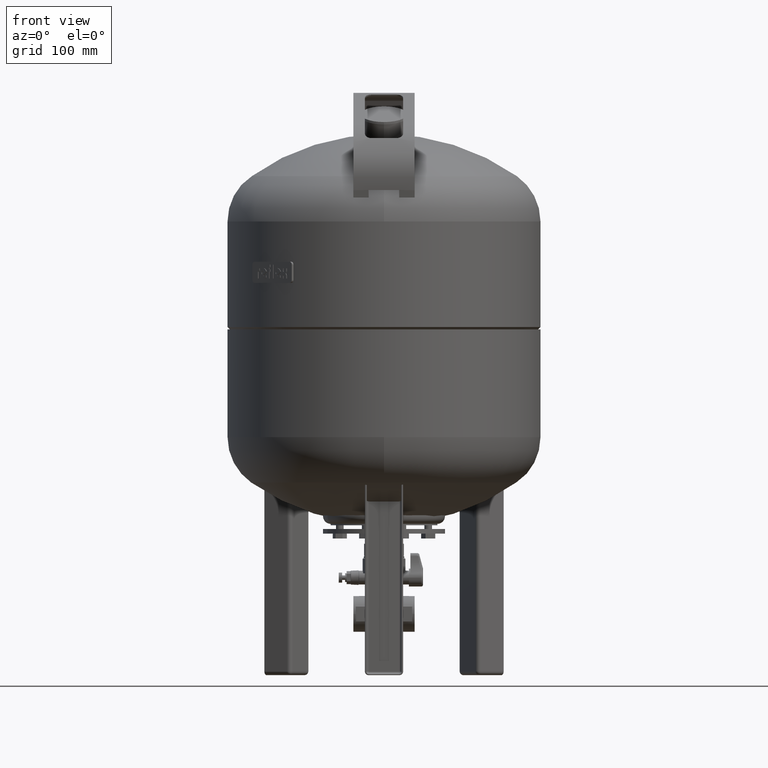
[diagram: clean part render]
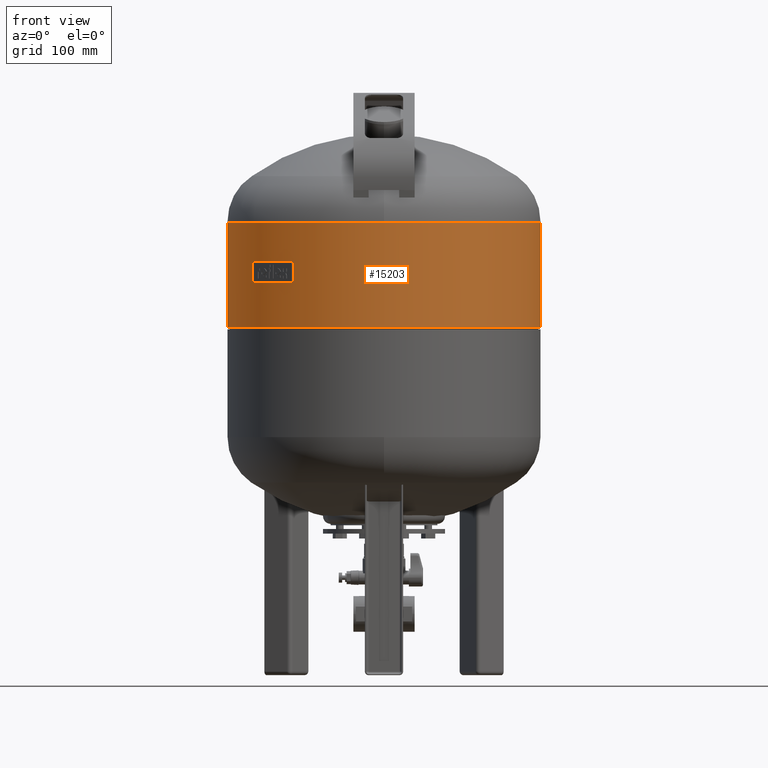
[diagram: same view with one face highlighted and labeled with its STEP entity id]
A machine part, front view. The second image highlights one B-rep face of the part: STEP entity #15203.
In plain terms, the highlighted cylindrical surface (partial cylindrical patch) has radius 204.5 mm, axis along (-0, 0, -1).
Its self-contained STEP definition (entity closure, byte-faithful):
#15137=CARTESIAN_POINT('',(-204.500000000000030,-2.522772E-014,455.0));
#15138=VERTEX_POINT('',#15137);
#15154=CARTESIAN_POINT('',(204.500000000000030,-1.828699E-016,455.0));
#15155=VERTEX_POINT('',#15154);
#15162=CARTESIAN_POINT('',(3.673940E-016,-1.836970E-016,455.0));
#15163=DIRECTION('',(0.0,0.0,-1.0));
#15164=DIRECTION('',(-1.0,0.0,0.0));
#15165=AXIS2_PLACEMENT_3D('',#15162,#15163,#15164);
#15166=CIRCLE('',#15165,204.500000000000030);
#15167=EDGE_CURVE('',#15155,#15138,#15166,.T.);
#15172=CARTESIAN_POINT('',(8.756225E-015,-4.378112E-015,523.500000000000000));
#15173=DIRECTION('',(-1.224647E-016,6.123234E-017,-1.0));
#15174=DIRECTION('',(-1.0,0.0,0.0));
#15175=AXIS2_PLACEMENT_3D('',#15172,#15173,#15174);
#15176=CYLINDRICAL_SURFACE('',#15175,204.500000000000030);
#15177=CARTESIAN_POINT('',(-204.500000000000030,-3.361655E-014,592.0));
#15178=VERTEX_POINT('',#15177);
#15179=CARTESIAN_POINT('',(-204.500000000000030,-2.522772E-014,455.0));
#15180=DIRECTION('',(0.0,0.0,1.0));
#15181=VECTOR('',#15180,137.0);
#15182=LINE('',#15179,#15181);
#15183=EDGE_CURVE('',#15138,#15178,#15182,.T.);
#15184=ORIENTED_EDGE('',*,*,#15183,.F.);
#15185=ORIENTED_EDGE('',*,*,#15167,.F.);
#15186=CARTESIAN_POINT('',(204.500000000000030,-8.571700E-015,592.0));
#15187=VERTEX_POINT('',#15186);
#15188=CARTESIAN_POINT('',(204.500000000000030,-1.828699E-016,455.0));
#15189=DIRECTION('',(0.0,0.0,1.0));
#15190=VECTOR('',#15189,137.0);
#15191=LINE('',#15188,#15190);
#15192=EDGE_CURVE('',#15155,#15187,#15191,.T.);
#15193=ORIENTED_EDGE('',*,*,#15192,.T.);
#15194=CARTESIAN_POINT('',(1.714506E-014,-8.572528E-015,592.0));
#15195=DIRECTION('',(0.0,0.0,-1.0));
#15196=DIRECTION('',(-1.0,0.0,0.0));
#15197=AXIS2_PLACEMENT_3D('',#15194,#15195,#15196);
#15198=CIRCLE('',#15197,204.500000000000030);
#15199=EDGE_CURVE('',#15187,#15178,#15198,.T.);
#15200=ORIENTED_EDGE('',*,*,#15199,.T.);
#15201=EDGE_LOOP('',(#15184,#15185,#15193,#15200));
#15202=FACE_OUTER_BOUND('',#15201,.T.);
#15203=ADVANCED_FACE('',(#15202),#15176,.T.);